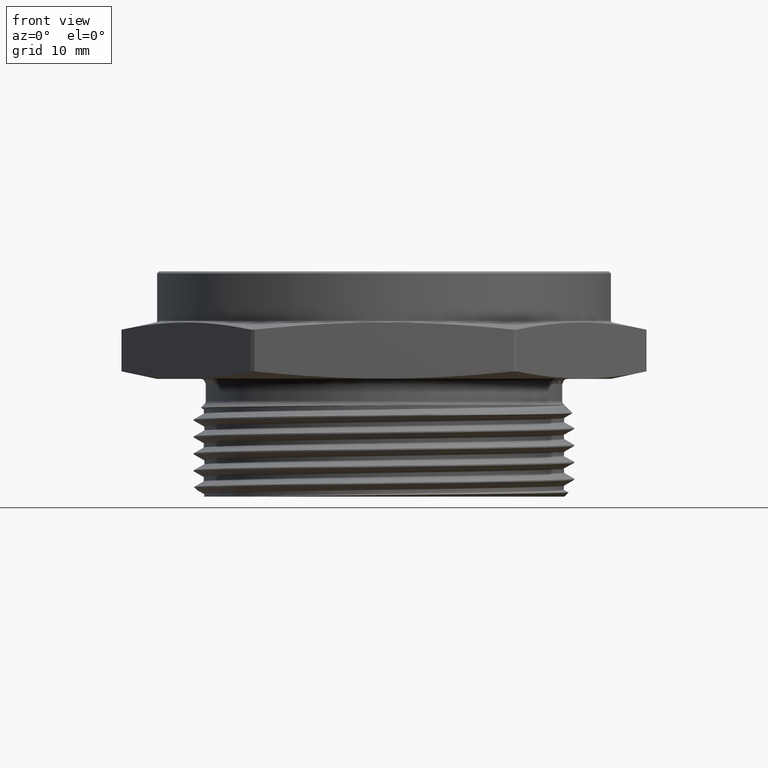
[diagram: clean part render]
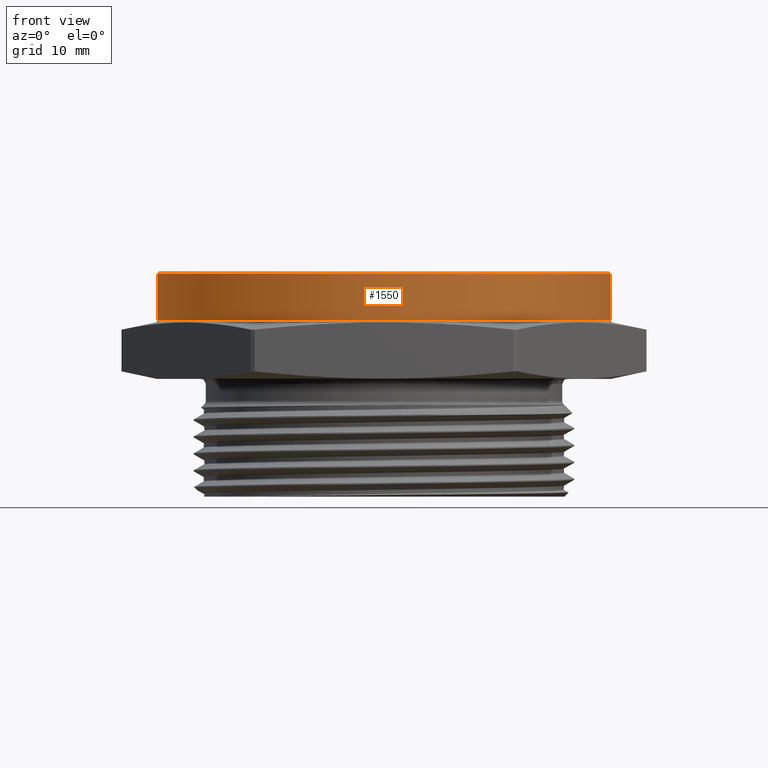
[diagram: same view with one face highlighted and labeled with its STEP entity id]
A machine part, front view. The second image highlights one B-rep face of the part: STEP entity #1550.
In plain terms, the highlighted cylindrical surface (partial cylindrical patch) has radius 28.3845 mm, axis along (-0, -0, -1).
Its self-contained STEP definition (entity closure, byte-faithful):
#269 = EDGE_CURVE ( 'NONE', #553, #541, #1758, .T. ) ;
#277 = EDGE_CURVE ( 'NONE', #544, #541, #1766, .T. ) ;
#279 = EDGE_CURVE ( 'NONE', #563, #553, #1771, .T. ) ;
#357 = EDGE_CURVE ( 'NONE', #544, #563, #815, .T. ) ;
#541 = VERTEX_POINT ( 'NONE', #3412 ) ;
#544 = VERTEX_POINT ( 'NONE', #3425 ) ;
#553 = VERTEX_POINT ( 'NONE', #3434 ) ;
#563 = VERTEX_POINT ( 'NONE', #3444 ) ;
#651 = AXIS2_PLACEMENT_3D ( 'NONE', #2676, #2675, #2674 ) ;
#680 = AXIS2_PLACEMENT_3D ( 'NONE', #3157, #3158, #3159 ) ;
#762 = AXIS2_PLACEMENT_3D ( 'NONE', #1837, #1833, #1834 ) ;
#815 = CIRCLE ( 'NONE', #680, 1.117500000000000200 ) ;
#851 = FACE_OUTER_BOUND ( 'NONE', #2614, .T. ) ;
#853 = CYLINDRICAL_SURFACE ( 'NONE', #762, 1.117500000000000200 ) ;
#1550 = ADVANCED_FACE ( 'NONE', ( #851 ), #853, .T. ) ;
#1758 = CIRCLE ( 'NONE', #651, 1.117500000000000200 ) ;
#1766 = LINE ( 'NONE', #2658, #1770 ) ;
#1770 = VECTOR ( 'NONE', #2652, 39.37007874015748100 ) ;
#1771 = LINE ( 'NONE', #2653, #1773 ) ;
#1773 = VECTOR ( 'NONE', #2659, 39.37007874015748100 ) ;
#1833 = DIRECTION ( 'NONE',  ( -0.0000000000000000000, -0.0000000000000000000, -1.000000000000000000 ) ) ;
#1834 = DIRECTION ( 'NONE',  ( -1.000000000000000000, 0.0000000000000000000, 0.0000000000000000000 ) ) ;
#1837 = CARTESIAN_POINT ( 'NONE',  ( 0.0000000000000000000, 0.0000000000000000000, 0.5300000000000000300 ) ) ;
#1868 = ORIENTED_EDGE ( 'NONE', *, *, #277, .F. ) ;
#1869 = ORIENTED_EDGE ( 'NONE', *, *, #357, .T. ) ;
#1870 = ORIENTED_EDGE ( 'NONE', *, *, #279, .T. ) ;
#1871 = ORIENTED_EDGE ( 'NONE', *, *, #269, .T. ) ;
#2614 = EDGE_LOOP ( 'NONE', ( #1868, #1869, #1870, #1871 ) ) ;
#2652 = DIRECTION ( 'NONE',  ( -0.0000000000000000000, -0.0000000000000000000, -1.000000000000000000 ) ) ;
#2653 = CARTESIAN_POINT ( 'NONE',  ( -1.117500000000000200, 0.0000000000000000000, 0.5300000000000000300 ) ) ;
#2658 = CARTESIAN_POINT ( 'NONE',  ( 1.117500000000000200, 1.368542798047167300E-016, 0.5300000000000000300 ) ) ;
#2659 = DIRECTION ( 'NONE',  ( -0.0000000000000000000, -0.0000000000000000000, -1.000000000000000000 ) ) ;
#2674 = DIRECTION ( 'NONE',  ( 1.000000000000000000, 0.0000000000000000000, -6.111516764349581000E-017 ) ) ;
#2675 = DIRECTION ( 'NONE',  ( 6.123233995736748800E-017, 0.0000000000000000000, 1.000000000000000000 ) ) ;
#2676 = CARTESIAN_POINT ( 'NONE',  ( 0.0000000000000000000, 0.0000000000000000000, 0.2864782722655602700 ) ) ;
#3157 = CARTESIAN_POINT ( 'NONE',  ( 0.0000000000000000000, 0.0000000000000000000, 0.5200000000000000200 ) ) ;
#3158 = DIRECTION ( 'NONE',  ( 0.0000000000000000000, 0.0000000000000000000, -1.000000000000000000 ) ) ;
#3159 = DIRECTION ( 'NONE',  ( 1.000000000000000000, 0.0000000000000000000, 0.0000000000000000000 ) ) ;
#3412 = CARTESIAN_POINT ( 'NONE',  ( 1.117500000000000200, 1.368542798047167300E-016, 0.2864782722655602200 ) ) ;
#3425 = CARTESIAN_POINT ( 'NONE',  ( 1.117500000000000200, 1.368542798047167300E-016, 0.5200000000000000200 ) ) ;
#3434 = CARTESIAN_POINT ( 'NONE',  ( -1.117500000000000200, 0.0000000000000000000, 0.2864782722655603900 ) ) ;
#3444 = CARTESIAN_POINT ( 'NONE',  ( -1.117500000000000200, 0.0000000000000000000, 0.5200000000000000200 ) ) ;